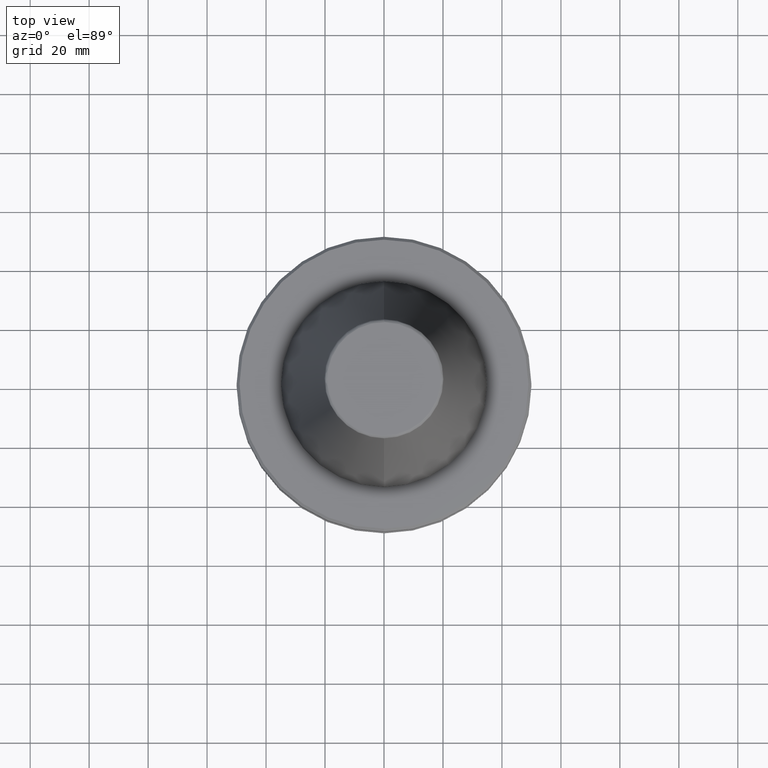
[diagram: clean part render]
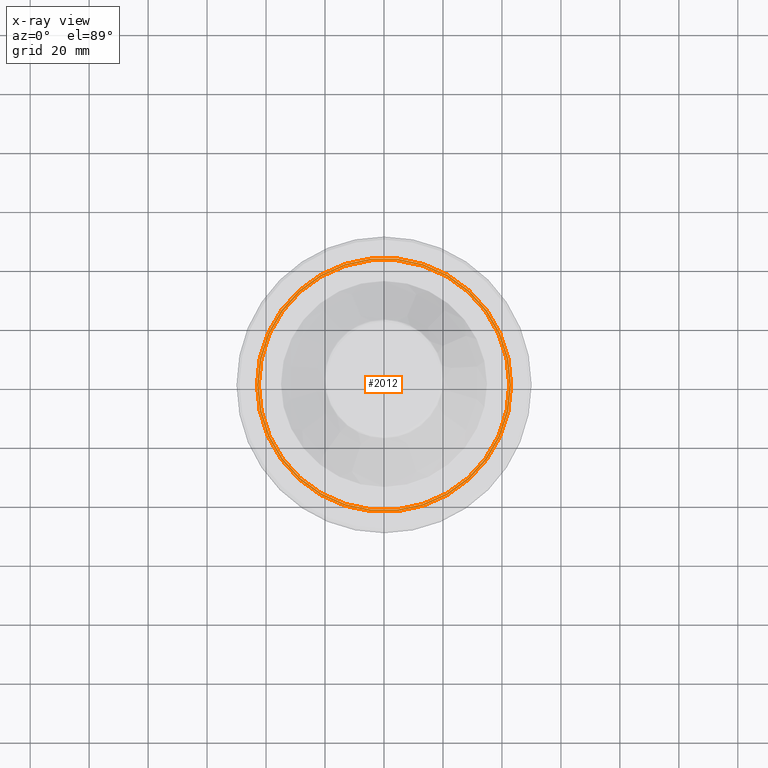
[diagram: x-ray — body ghosted, one internal face saturated and labeled with its STEP entity id]
A machine part, top view, then the same camera in x-ray: the body is ghosted and one INTERNAL B-rep face — a face not visible from any outside direction — is saturated and labeled: STEP entity #2012.
In plain terms, the highlighted planar face has unit normal (0, 0, 1).
Its self-contained STEP definition (entity closure, byte-faithful):
#17 = ORIENTED_EDGE ( 'NONE', *, *, #2656, .F. ) ;
#296 = ORIENTED_EDGE ( 'NONE', *, *, #2467, .F. ) ;
#352 = CARTESIAN_POINT ( 'NONE',  ( 42.50000000000000000, 0.0000000000000000000, -19.70000000000001000 ) ) ;
#576 = AXIS2_PLACEMENT_3D ( 'NONE', #1118, #1116, #1115 ) ;
#635 = ORIENTED_EDGE ( 'NONE', *, *, #2756, .F. ) ;
#649 = VERTEX_POINT ( 'NONE', #712 ) ;
#712 = CARTESIAN_POINT ( 'NONE',  ( -43.07217782649103600, 5.699027233244276000E-015, -19.70000000000001000 ) ) ;
#853 = FACE_BOUND ( 'NONE', #1334, .T. ) ;
#882 = DIRECTION ( 'NONE',  ( 1.000000000000000000, 0.0000000000000000000, 0.0000000000000000000 ) ) ;
#883 = DIRECTION ( 'NONE',  ( 0.0000000000000000000, -0.0000000000000000000, 1.000000000000000000 ) ) ;
#886 = CARTESIAN_POINT ( 'NONE',  ( 0.0000000000000000000, 0.0000000000000000000, -19.70000000000001000 ) ) ;
#963 = CIRCLE ( 'NONE', #576, 42.50000000000000000 ) ;
#1022 = AXIS2_PLACEMENT_3D ( 'NONE', #886, #883, #882 ) ;
#1115 = DIRECTION ( 'NONE',  ( 1.000000000000000000, 0.0000000000000000000, 0.0000000000000000000 ) ) ;
#1116 = DIRECTION ( 'NONE',  ( -0.0000000000000000000, -0.0000000000000000000, -1.000000000000000000 ) ) ;
#1118 = CARTESIAN_POINT ( 'NONE',  ( 0.0000000000000000000, 0.0000000000000000000, -19.70000000000001000 ) ) ;
#1203 = CARTESIAN_POINT ( 'NONE',  ( 43.07217782649103600, 0.0000000000000000000, -19.70000000000001000 ) ) ;
#1249 = CARTESIAN_POINT ( 'NONE',  ( 0.0000000000000000000, 0.0000000000000000000, -19.70000000000001000 ) ) ;
#1295 = DIRECTION ( 'NONE',  ( 0.0000000000000000000, -0.0000000000000000000, 1.000000000000000000 ) ) ;
#1334 = EDGE_LOOP ( 'NONE', ( #17, #296 ) ) ;
#1497 = VERTEX_POINT ( 'NONE', #352 ) ;
#1512 = DIRECTION ( 'NONE',  ( -0.0000000000000000000, -0.0000000000000000000, -1.000000000000000000 ) ) ;
#1702 = FACE_OUTER_BOUND ( 'NONE', #2515, .T. ) ;
#1705 = CARTESIAN_POINT ( 'NONE',  ( 0.0000000000000000000, 0.0000000000000000000, -19.70000000000001000 ) ) ;
#1809 = CIRCLE ( 'NONE', #2469, 42.50000000000000000 ) ;
#1919 = CARTESIAN_POINT ( 'NONE',  ( 0.0000000000000000000, 43.07217782649103600, -19.70000000000000300 ) ) ;
#1966 = CARTESIAN_POINT ( 'NONE',  ( -42.50000000000000000, 5.204748896376250900E-015, -19.70000000000001000 ) ) ;
#2012 = ADVANCED_FACE ( 'NONE', ( #1702, #853 ), #2090, .F. ) ;
#2015 = DIRECTION ( 'NONE',  ( 1.000000000000000000, 0.0000000000000000000, 0.0000000000000000000 ) ) ;
#2023 = VERTEX_POINT ( 'NONE', #1966 ) ;
#2090 = PLANE ( 'NONE',  #2380 ) ;
#2182 = ORIENTED_EDGE ( 'NONE', *, *, #2669, .F. ) ;
#2304 = CIRCLE ( 'NONE', #2657, 43.07217782649103600 ) ;
#2380 = AXIS2_PLACEMENT_3D ( 'NONE', #1919, #2751, #2749 ) ;
#2382 = VERTEX_POINT ( 'NONE', #1203 ) ;
#2454 = DIRECTION ( 'NONE',  ( 1.000000000000000000, 0.0000000000000000000, 0.0000000000000000000 ) ) ;
#2467 = EDGE_CURVE ( 'NONE', #2023, #1497, #963, .T. ) ;
#2469 = AXIS2_PLACEMENT_3D ( 'NONE', #1249, #1512, #2015 ) ;
#2515 = EDGE_LOOP ( 'NONE', ( #2182, #635 ) ) ;
#2656 = EDGE_CURVE ( 'NONE', #1497, #2023, #1809, .T. ) ;
#2657 = AXIS2_PLACEMENT_3D ( 'NONE', #1705, #1295, #2454 ) ;
#2669 = EDGE_CURVE ( 'NONE', #2382, #649, #2304, .T. ) ;
#2727 = CIRCLE ( 'NONE', #1022, 43.07217782649103600 ) ;
#2749 = DIRECTION ( 'NONE',  ( 1.000000000000000000, 0.0000000000000000000, -0.0000000000000000000 ) ) ;
#2751 = DIRECTION ( 'NONE',  ( 0.0000000000000000000, 0.0000000000000000000, 1.000000000000000000 ) ) ;
#2756 = EDGE_CURVE ( 'NONE', #649, #2382, #2727, .T. ) ;